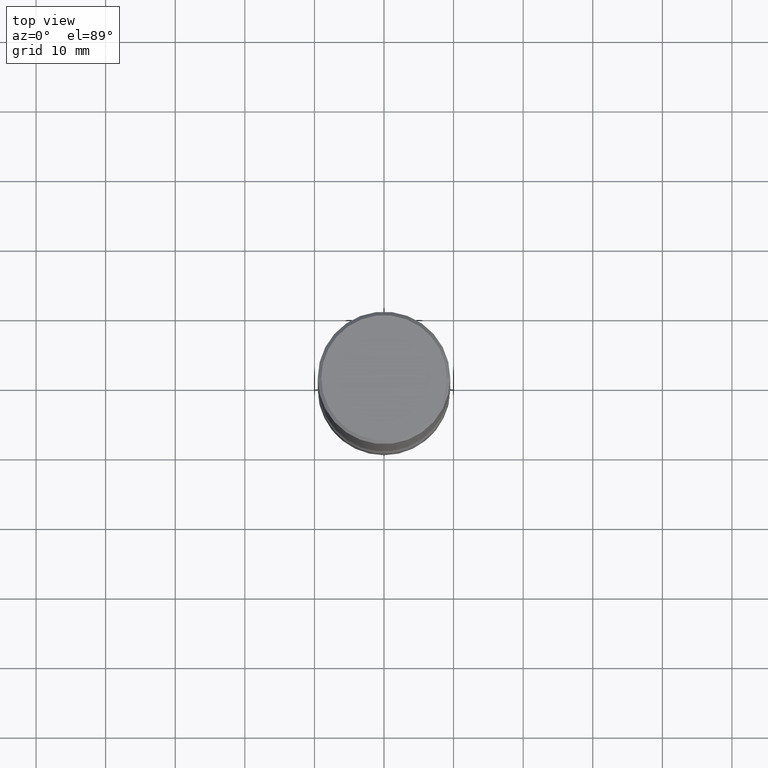
[diagram: clean part render]
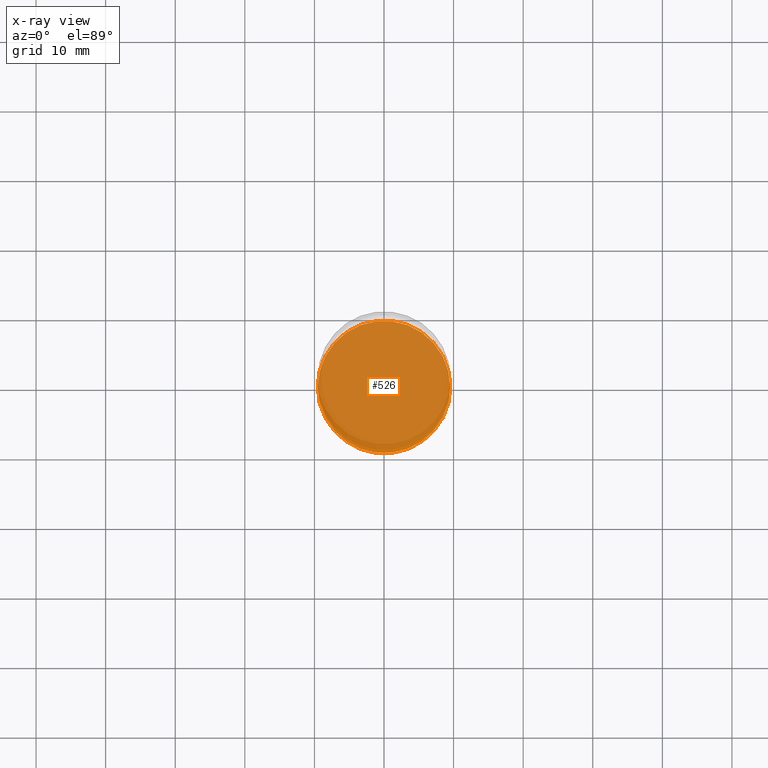
[diagram: x-ray — body ghosted, one internal face saturated and labeled with its STEP entity id]
A machine part, top view, then the same camera in x-ray: the body is ghosted and one INTERNAL B-rep face — a face not visible from any outside direction — is saturated and labeled: STEP entity #526.
In plain terms, the highlighted planar face has unit normal (0, -0, -1).
Its self-contained STEP definition (entity closure, byte-faithful):
#1 = DIRECTION ( 'NONE',  ( 2.438088387897960049E-29, -3.491481338843145188E-15, -1.000000000000000000 ) ) ;
#5 = DIRECTION ( 'NONE',  ( -1.000000000000000000, 6.982962677686265922E-15, -4.876176775795935793E-29 ) ) ;
#16 = DIRECTION ( 'NONE',  ( 2.445468806185136597E-29, -3.491481338843145583E-15, -1.000000000000000000 ) ) ;
#25 = CARTESIAN_POINT ( 'NONE',  ( 7.336406418555408669E-29, -1.047444401652943478E-14, -2.999999999999999556 ) ) ;
#61 = DIRECTION ( 'NONE',  ( -1.000000000000000000, 6.982962677686268288E-15, 0.000000000000000000 ) ) ;
#79 = CARTESIAN_POINT ( 'NONE',  ( 2.615119522793576429E-15, 0.3744999999999890639, -3.000000000000000888 ) ) ;
#95 = CARTESIAN_POINT ( 'NONE',  ( 7.336406418555408669E-29, -1.047444401652943478E-14, -2.999999999999999556 ) ) ;
#105 = AXIS2_PLACEMENT_3D ( 'NONE', #95, #16, #183 ) ;
#108 = DIRECTION ( 'NONE',  ( 2.445468806185136597E-29, -3.491481338843145583E-15, -1.000000000000000000 ) ) ;
#167 = CARTESIAN_POINT ( 'NONE',  ( -0.3744999999999995000, -7.811601316282283862E-15, -2.999999999999999556 ) ) ;
#183 = DIRECTION ( 'NONE',  ( -1.000000000000000000, 6.982962677686268288E-15, 0.000000000000000000 ) ) ;
#206 = ORIENTED_EDGE ( 'NONE', *, *, #449, .T. ) ;
#213 = CIRCLE ( 'NONE', #394, 0.3744999999999995000 ) ;
#261 = EDGE_CURVE ( 'NONE', #351, #527, #213, .T. ) ;
#298 = FACE_OUTER_BOUND ( 'NONE', #339, .T. ) ;
#302 = AXIS2_PLACEMENT_3D ( 'NONE', #79, #1, #5 ) ;
#310 = CIRCLE ( 'NONE', #105, 0.3744999999999995000 ) ;
#339 = EDGE_LOOP ( 'NONE', ( #513, #206 ) ) ;
#351 = VERTEX_POINT ( 'NONE', #438 ) ;
#394 = AXIS2_PLACEMENT_3D ( 'NONE', #25, #108, #61 ) ;
#438 = CARTESIAN_POINT ( 'NONE',  ( 0.3744999999999995000, -1.309017642521701711E-14, -2.999999999999999556 ) ) ;
#449 = EDGE_CURVE ( 'NONE', #527, #351, #310, .T. ) ;
#468 = PLANE ( 'NONE',  #302 ) ;
#513 = ORIENTED_EDGE ( 'NONE', *, *, #261, .T. ) ;
#526 = ADVANCED_FACE ( 'NONE', ( #298 ), #468, .T. ) ;
#527 = VERTEX_POINT ( 'NONE', #167 ) ;